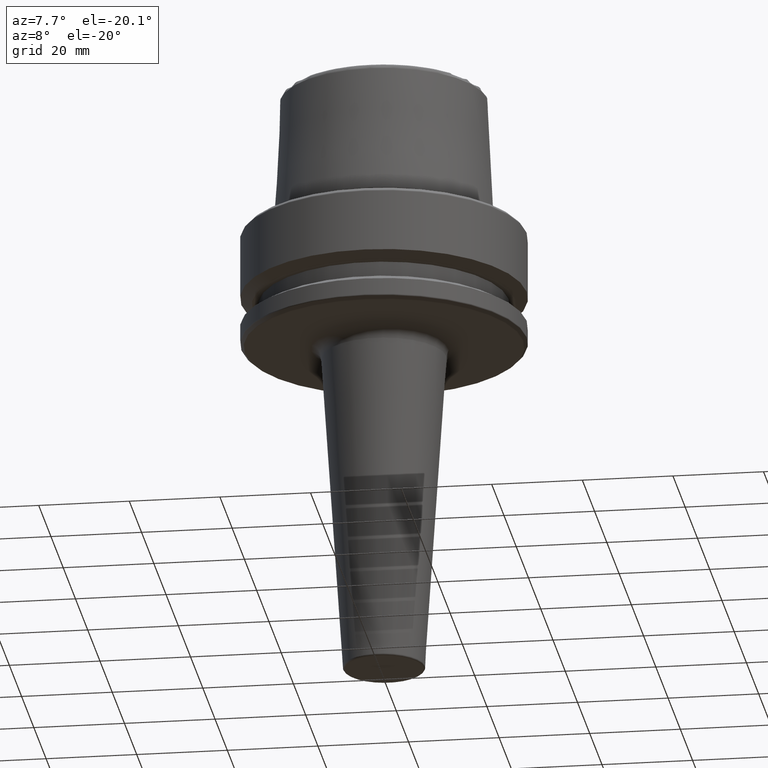
[diagram: clean part render]
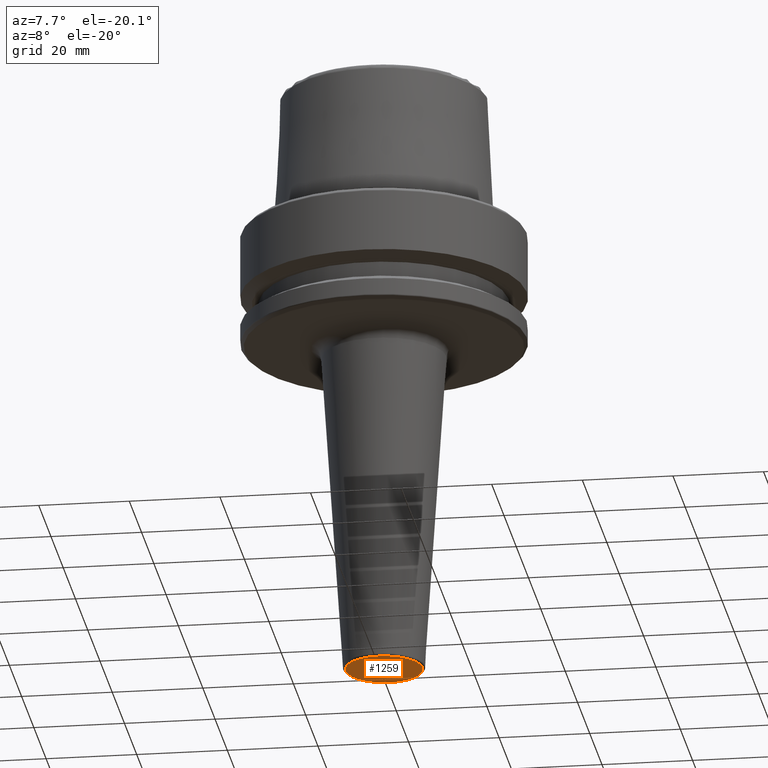
[diagram: same view with one face highlighted and labeled with its STEP entity id]
A machine part, auxiliary view. The second image highlights one B-rep face of the part: STEP entity #1259.
In plain terms, the highlighted planar face has unit normal (-0, 0, -1).
Its self-contained STEP definition (entity closure, byte-faithful):
#18 = DIRECTION ( 'NONE',  ( -0.0000000000000000000, -0.0000000000000000000, -1.000000000000000000 ) ) ;
#42 = VERTEX_POINT ( 'NONE', #577 ) ;
#90 = DIRECTION ( 'NONE',  ( -0.0000000000000000000, -0.0000000000000000000, -1.000000000000000000 ) ) ;
#199 = CARTESIAN_POINT ( 'NONE',  ( 8.532223454054237900, 1.075444374256895400E-015, -101.0000000000000000 ) ) ;
#225 = ORIENTED_EDGE ( 'NONE', *, *, #695, .T. ) ;
#235 = ORIENTED_EDGE ( 'NONE', *, *, #407, .T. ) ;
#237 = PLANE ( 'NONE',  #326 ) ;
#247 = EDGE_LOOP ( 'NONE', ( #225, #235 ) ) ;
#326 = AXIS2_PLACEMENT_3D ( 'NONE', #621, #926, #338 ) ;
#338 = DIRECTION ( 'NONE',  ( -1.000000000000000000, 0.0000000000000000000, 0.0000000000000000000 ) ) ;
#355 = CIRCLE ( 'NONE', #399, 8.532223454054237900 ) ;
#379 = FACE_OUTER_BOUND ( 'NONE', #247, .T. ) ;
#399 = AXIS2_PLACEMENT_3D ( 'NONE', #587, #18, #686 ) ;
#407 = EDGE_CURVE ( 'NONE', #838, #42, #416, .T. ) ;
#416 = CIRCLE ( 'NONE', #1247, 8.532223454054237900 ) ;
#577 = CARTESIAN_POINT ( 'NONE',  ( -8.532223454054237900, 0.0000000000000000000, -101.0000000000000000 ) ) ;
#587 = CARTESIAN_POINT ( 'NONE',  ( 0.0000000000000000000, 0.0000000000000000000, -101.0000000000000000 ) ) ;
#621 = CARTESIAN_POINT ( 'NONE',  ( 0.0000000000000000000, 0.0000000000000000000, -101.0000000000000000 ) ) ;
#665 = CARTESIAN_POINT ( 'NONE',  ( 0.0000000000000000000, 0.0000000000000000000, -101.0000000000000000 ) ) ;
#686 = DIRECTION ( 'NONE',  ( -1.000000000000000000, 0.0000000000000000000, 0.0000000000000000000 ) ) ;
#695 = EDGE_CURVE ( 'NONE', #42, #838, #355, .T. ) ;
#773 = DIRECTION ( 'NONE',  ( -1.000000000000000000, 0.0000000000000000000, 0.0000000000000000000 ) ) ;
#838 = VERTEX_POINT ( 'NONE', #199 ) ;
#926 = DIRECTION ( 'NONE',  ( -0.0000000000000000000, 0.0000000000000000000, -1.000000000000000000 ) ) ;
#1247 = AXIS2_PLACEMENT_3D ( 'NONE', #665, #90, #773 ) ;
#1259 = ADVANCED_FACE ( 'NONE', ( #379 ), #237, .T. ) ;